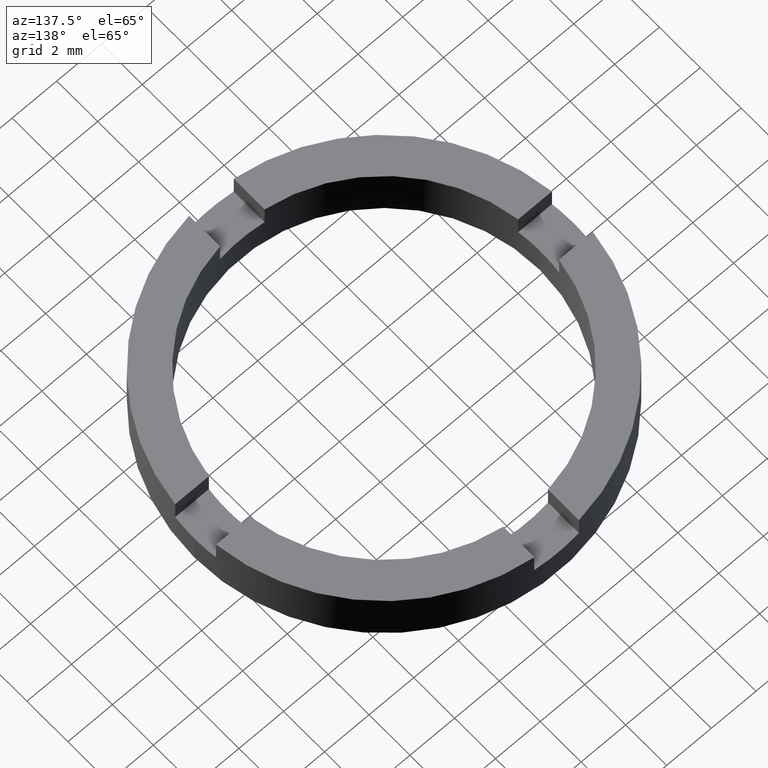
[diagram: clean part render]
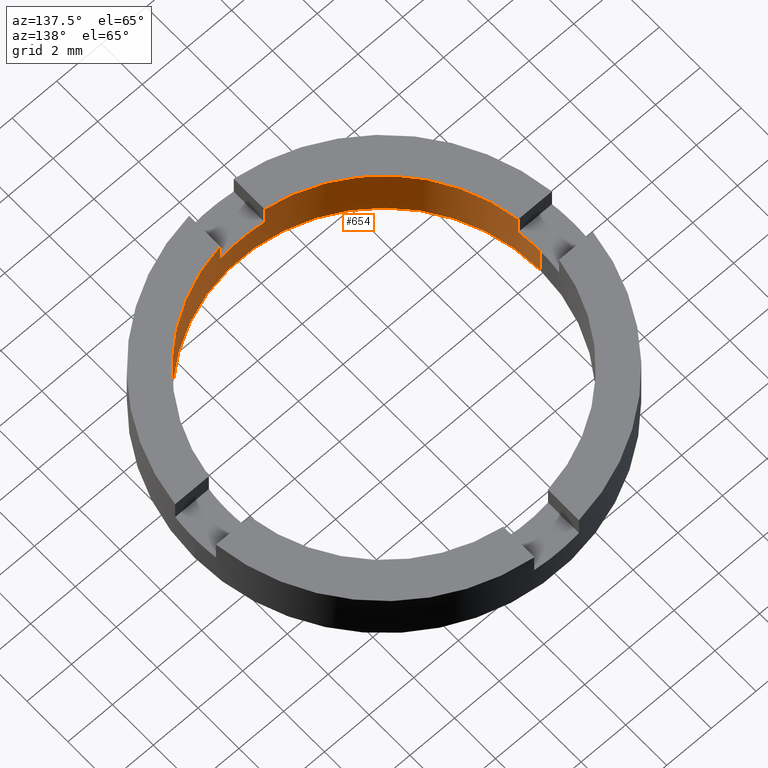
[diagram: same view with one face highlighted and labeled with its STEP entity id]
A machine part, auxiliary view. The second image highlights one B-rep face of the part: STEP entity #654.
In plain terms, the highlighted cylindrical surface (partial cylindrical patch) has radius 7 mm, axis along (-0, -0, -1).
Its self-contained STEP definition (entity closure, byte-faithful):
#6 = LINE ( 'NONE', #130, #551 ) ;
#30 = LINE ( 'NONE', #467, #557 ) ;
#50 = DIRECTION ( 'NONE',  ( -0.000000000000000000, -0.000000000000000000, 1.000000000000000000 ) ) ;
#63 = CARTESIAN_POINT ( 'NONE',  ( 0.000000000000000000, 0.000000000000000000, 2.500000000000000000 ) ) ;
#69 = EDGE_CURVE ( 'NONE', #524, #740, #749, .T. ) ;
#70 = LINE ( 'NONE', #410, #72 ) ;
#72 = VECTOR ( 'NONE', #418, 1000.000000000000000 ) ;
#88 = CARTESIAN_POINT ( 'NONE',  ( 7.000000000000000000, 8.572527594031473190E-16, 0.000000000000000000 ) ) ;
#95 = EDGE_CURVE ( 'NONE', #532, #496, #243, .T. ) ;
#101 = DIRECTION ( 'NONE',  ( 1.000000000000000000, 0.000000000000000000, 0.000000000000000000 ) ) ;
#120 = ORIENTED_EDGE ( 'NONE', *, *, #620, .F. ) ;
#124 = EDGE_CURVE ( 'NONE', #144, #740, #737, .T. ) ;
#128 = VERTEX_POINT ( 'NONE', #462 ) ;
#130 = CARTESIAN_POINT ( 'NONE',  ( 1.000000000000001332, -6.928203230275509661, 1.500000000000000000 ) ) ;
#137 = CARTESIAN_POINT ( 'NONE',  ( 7.000000000000000000, 8.572527594031473190E-16, 1.500000000000000000 ) ) ;
#144 = VERTEX_POINT ( 'NONE', #523 ) ;
#145 = VERTEX_POINT ( 'NONE', #157 ) ;
#148 = EDGE_CURVE ( 'NONE', #128, #252, #323, .T. ) ;
#152 = DIRECTION ( 'NONE',  ( 0.000000000000000000, -0.000000000000000000, -1.000000000000000000 ) ) ;
#156 = AXIS2_PLACEMENT_3D ( 'NONE', #637, #152, #101 ) ;
#157 = CARTESIAN_POINT ( 'NONE',  ( 6.928203230275506108, -1.000000000000026867, 2.500000000000000000 ) ) ;
#160 = DIRECTION ( 'NONE',  ( -0.000000000000000000, -0.000000000000000000, -1.000000000000000000 ) ) ;
#162 = CARTESIAN_POINT ( 'NONE',  ( 0.000000000000000000, 0.000000000000000000, 2.500000000000000000 ) ) ;
#166 = CARTESIAN_POINT ( 'NONE',  ( 6.928203230275506108, -1.000000000000026867, 1.500000000000000000 ) ) ;
#177 = AXIS2_PLACEMENT_3D ( 'NONE', #755, #453, #658 ) ;
#179 = CARTESIAN_POINT ( 'NONE',  ( 1.000000000000001110, -6.928203230275508773, 1.500000000000000000 ) ) ;
#190 = EDGE_CURVE ( 'NONE', #524, #241, #582, .T. ) ;
#197 = AXIS2_PLACEMENT_3D ( 'NONE', #768, #751, #368 ) ;
#203 = DIRECTION ( 'NONE',  ( -1.000000000000000000, 0.000000000000000000, 0.000000000000000000 ) ) ;
#205 = CARTESIAN_POINT ( 'NONE',  ( 0.000000000000000000, 0.000000000000000000, 1.500000000000000000 ) ) ;
#212 = CARTESIAN_POINT ( 'NONE',  ( 7.000000000000000000, 8.572527594031473190E-16, 2.500000000000000000 ) ) ;
#220 = EDGE_CURVE ( 'NONE', #241, #145, #288, .T. ) ;
#228 = VERTEX_POINT ( 'NONE', #636 ) ;
#231 = ORIENTED_EDGE ( 'NONE', *, *, #677, .T. ) ;
#237 = VECTOR ( 'NONE', #328, 1000.000000000000000 ) ;
#241 = VERTEX_POINT ( 'NONE', #166 ) ;
#243 = CIRCLE ( 'NONE', #425, 7.000000000000000000 ) ;
#252 = VERTEX_POINT ( 'NONE', #469 ) ;
#288 = LINE ( 'NONE', #440, #293 ) ;
#293 = VECTOR ( 'NONE', #50, 1000.000000000000000 ) ;
#298 = DIRECTION ( 'NONE',  ( -0.000000000000000000, -0.000000000000000000, 1.000000000000000000 ) ) ;
#309 = DIRECTION ( 'NONE',  ( 0.000000000000000000, 0.000000000000000000, 1.000000000000000000 ) ) ;
#323 = LINE ( 'NONE', #684, #559 ) ;
#328 = DIRECTION ( 'NONE',  ( -0.000000000000000000, -0.000000000000000000, -1.000000000000000000 ) ) ;
#333 = FACE_OUTER_BOUND ( 'NONE', #699, .T. ) ;
#335 = CIRCLE ( 'NONE', #646, 7.000000000000000000 ) ;
#368 = DIRECTION ( 'NONE',  ( 1.000000000000000000, 0.000000000000000000, 0.000000000000000000 ) ) ;
#380 = ORIENTED_EDGE ( 'NONE', *, *, #69, .T. ) ;
#386 = ORIENTED_EDGE ( 'NONE', *, *, #748, .T. ) ;
#393 = ORIENTED_EDGE ( 'NONE', *, *, #220, .F. ) ;
#405 = AXIS2_PLACEMENT_3D ( 'NONE', #63, #160, #203 ) ;
#410 = CARTESIAN_POINT ( 'NONE',  ( -7.000000000000000000, 0.000000000000000000, 2.500000000000000000 ) ) ;
#415 = EDGE_CURVE ( 'NONE', #496, #759, #30, .T. ) ;
#418 = DIRECTION ( 'NONE',  ( -0.000000000000000000, -0.000000000000000000, -1.000000000000000000 ) ) ;
#425 = AXIS2_PLACEMENT_3D ( 'NONE', #205, #459, #742 ) ;
#435 = CARTESIAN_POINT ( 'NONE',  ( -7.000000000000000000, 0.000000000000000000, 1.500000000000000000 ) ) ;
#440 = CARTESIAN_POINT ( 'NONE',  ( 6.928203230275506108, -1.000000000000026867, 1.500000000000000000 ) ) ;
#453 = DIRECTION ( 'NONE',  ( 0.000000000000000000, -0.000000000000000000, -1.000000000000000000 ) ) ;
#459 = DIRECTION ( 'NONE',  ( 0.000000000000000000, -0.000000000000000000, -1.000000000000000000 ) ) ;
#462 = CARTESIAN_POINT ( 'NONE',  ( -6.928203230275513214, -0.9999999999999753530, 1.500000000000000000 ) ) ;
#466 = AXIS2_PLACEMENT_3D ( 'NONE', #614, #309, #649 ) ;
#467 = CARTESIAN_POINT ( 'NONE',  ( -0.9999999999999986677, -6.928203230275509661, 1.500000000000000000 ) ) ;
#469 = CARTESIAN_POINT ( 'NONE',  ( -6.928203230275513214, -0.9999999999999753530, 2.500000000000000000 ) ) ;
#481 = ORIENTED_EDGE ( 'NONE', *, *, #576, .F. ) ;
#483 = CARTESIAN_POINT ( 'NONE',  ( -0.9999999999999986677, -6.928203230275509661, 1.500000000000000000 ) ) ;
#495 = ORIENTED_EDGE ( 'NONE', *, *, #190, .F. ) ;
#496 = VERTEX_POINT ( 'NONE', #483 ) ;
#498 = ORIENTED_EDGE ( 'NONE', *, *, #124, .F. ) ;
#522 = VERTEX_POINT ( 'NONE', #435 ) ;
#523 = CARTESIAN_POINT ( 'NONE',  ( -7.000000000000000000, 0.000000000000000000, 0.000000000000000000 ) ) ;
#524 = VERTEX_POINT ( 'NONE', #137 ) ;
#530 = ORIENTED_EDGE ( 'NONE', *, *, #95, .F. ) ;
#532 = VERTEX_POINT ( 'NONE', #179 ) ;
#537 = CIRCLE ( 'NONE', #466, 7.000000000000000000 ) ;
#551 = VECTOR ( 'NONE', #665, 1000.000000000000000 ) ;
#557 = VECTOR ( 'NONE', #664, 1000.000000000000000 ) ;
#559 = VECTOR ( 'NONE', #298, 1000.000000000000000 ) ;
#573 = DIRECTION ( 'NONE',  ( 1.000000000000000000, 0.000000000000000000, 0.000000000000000000 ) ) ;
#576 = EDGE_CURVE ( 'NONE', #522, #144, #70, .T. ) ;
#582 = CIRCLE ( 'NONE', #156, 7.000000000000000000 ) ;
#594 = CYLINDRICAL_SURFACE ( 'NONE', #405, 7.000000000000000000 ) ;
#602 = CIRCLE ( 'NONE', #177, 7.000000000000000000 ) ;
#611 = DIRECTION ( 'NONE',  ( 0.000000000000000000, 0.000000000000000000, 1.000000000000000000 ) ) ;
#614 = CARTESIAN_POINT ( 'NONE',  ( 0.000000000000000000, 0.000000000000000000, 2.500000000000000000 ) ) ;
#620 = EDGE_CURVE ( 'NONE', #128, #522, #602, .T. ) ;
#628 = EDGE_CURVE ( 'NONE', #252, #759, #335, .T. ) ;
#636 = CARTESIAN_POINT ( 'NONE',  ( 1.000000000000001332, -6.928203230275509661, 2.500000000000000000 ) ) ;
#637 = CARTESIAN_POINT ( 'NONE',  ( 0.000000000000000000, 0.000000000000000000, 1.500000000000000000 ) ) ;
#638 = ORIENTED_EDGE ( 'NONE', *, *, #628, .T. ) ;
#646 = AXIS2_PLACEMENT_3D ( 'NONE', #162, #611, #573 ) ;
#649 = DIRECTION ( 'NONE',  ( 1.000000000000000000, 0.000000000000000000, 0.000000000000000000 ) ) ;
#654 = ADVANCED_FACE ( 'NONE', ( #333 ), #594, .F. ) ;
#658 = DIRECTION ( 'NONE',  ( 1.000000000000000000, 9.769962616701377556E-15, 0.000000000000000000 ) ) ;
#664 = DIRECTION ( 'NONE',  ( -0.000000000000000000, -0.000000000000000000, 1.000000000000000000 ) ) ;
#665 = DIRECTION ( 'NONE',  ( -0.000000000000000000, -0.000000000000000000, 1.000000000000000000 ) ) ;
#677 = EDGE_CURVE ( 'NONE', #228, #145, #537, .T. ) ;
#684 = CARTESIAN_POINT ( 'NONE',  ( -6.928203230275513214, -0.9999999999999753530, 1.500000000000000000 ) ) ;
#699 = EDGE_LOOP ( 'NONE', ( #495, #380, #498, #481, #120, #744, #638, #776, #530, #386, #231, #393 ) ) ;
#702 = CARTESIAN_POINT ( 'NONE',  ( -0.9999999999999986677, -6.928203230275509661, 2.500000000000000000 ) ) ;
#737 = CIRCLE ( 'NONE', #197, 7.000000000000000000 ) ;
#740 = VERTEX_POINT ( 'NONE', #88 ) ;
#742 = DIRECTION ( 'NONE',  ( 1.000000000000000000, 0.000000000000000000, 0.000000000000000000 ) ) ;
#744 = ORIENTED_EDGE ( 'NONE', *, *, #148, .T. ) ;
#748 = EDGE_CURVE ( 'NONE', #532, #228, #6, .T. ) ;
#749 = LINE ( 'NONE', #212, #237 ) ;
#751 = DIRECTION ( 'NONE',  ( 0.000000000000000000, 0.000000000000000000, 1.000000000000000000 ) ) ;
#755 = CARTESIAN_POINT ( 'NONE',  ( 0.000000000000000000, 0.000000000000000000, 1.500000000000000000 ) ) ;
#759 = VERTEX_POINT ( 'NONE', #702 ) ;
#768 = CARTESIAN_POINT ( 'NONE',  ( 0.000000000000000000, 0.000000000000000000, 0.000000000000000000 ) ) ;
#776 = ORIENTED_EDGE ( 'NONE', *, *, #415, .F. ) ;